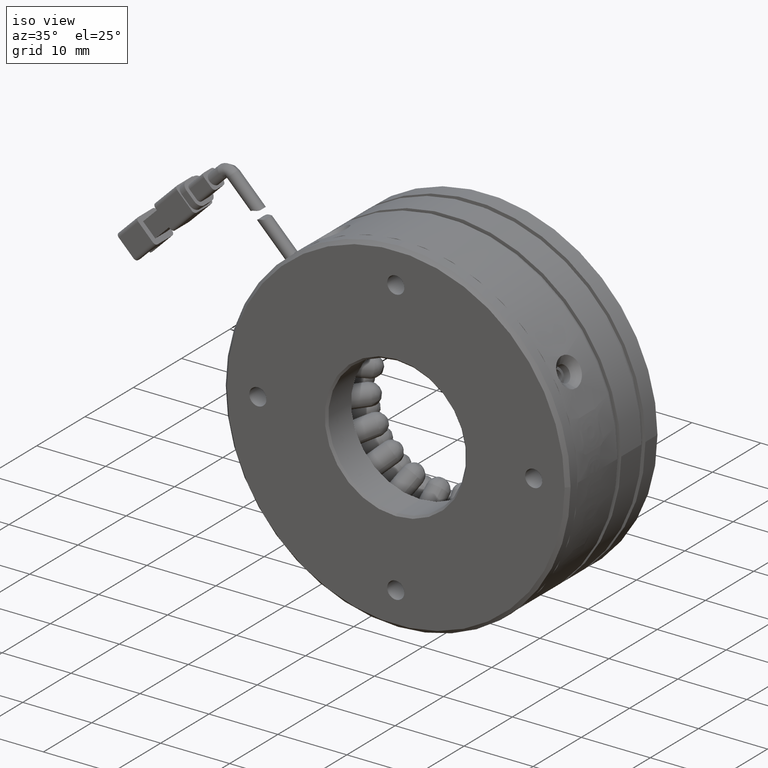
[diagram: clean part render]
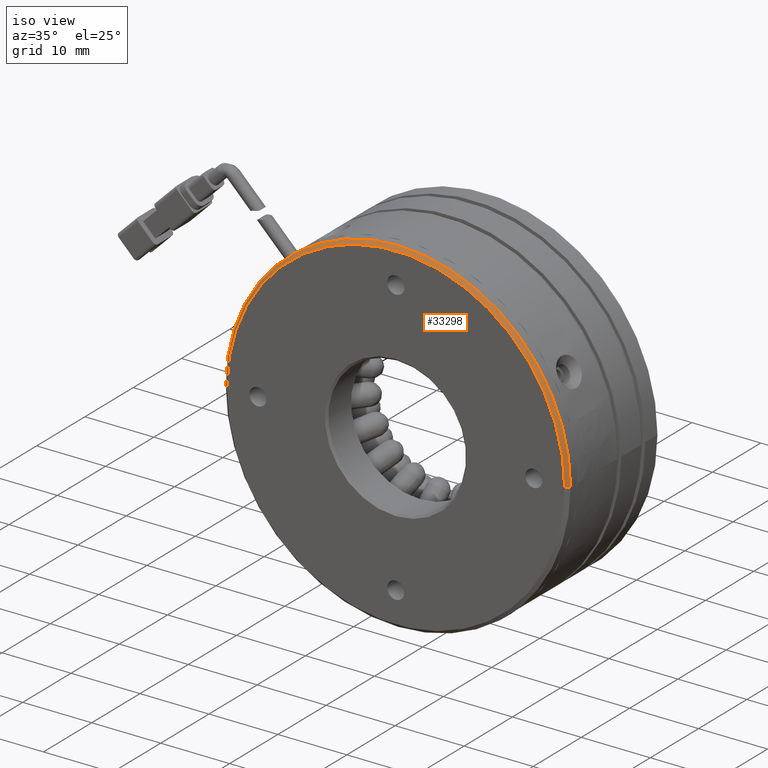
[diagram: same view with one face highlighted and labeled with its STEP entity id]
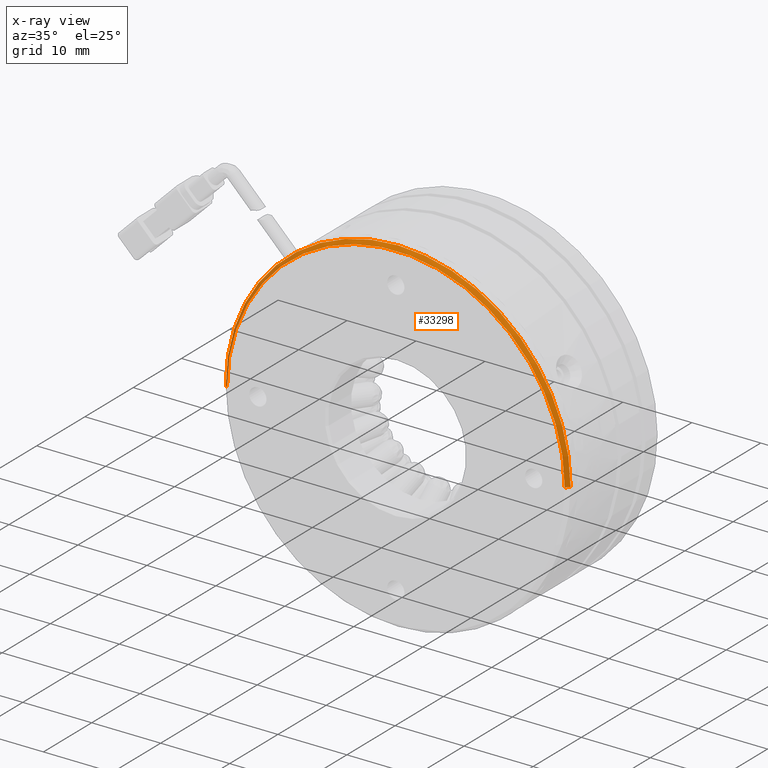
[diagram: x-ray of the same camera — body ghosted, the highlighted face saturated]
A machine part, iso view. The second image highlights one B-rep face of the part: STEP entity #33298.
The next image is the same camera in x-ray: the body ghosted, the highlighted face saturated — about 0% of this face is hidden behind the body in this view.
In plain terms, the highlighted conical surface has half-angle 45 deg.
Its self-contained STEP definition (entity closure, byte-faithful):
#421 = CONICAL_SURFACE ( 'NONE', #27696, 25.00000000000000000, 0.7853981633974380600 ) ;
#854 = VERTEX_POINT ( 'NONE', #55581 ) ;
#3679 = CIRCLE ( 'NONE', #52409, 25.00000000000000000 ) ;
#9004 = CARTESIAN_POINT ( 'NONE',  ( 20.97418136128692400, 0.6682341470607213700, 3.061616997868383400E-015 ) ) ;
#10706 = CARTESIAN_POINT ( 'NONE',  ( 20.97418136128692400, 0.6682341470607197100, 3.061616997868383000E-015 ) ) ;
#10949 = VECTOR ( 'NONE', #47895, 1000.000000000000000 ) ;
#15652 = VERTEX_POINT ( 'NONE', #41246 ) ;
#15858 = LINE ( 'NONE', #10706, #28560 ) ;
#16691 = ORIENTED_EDGE ( 'NONE', *, *, #40428, .T. ) ;
#17619 = DIRECTION ( 'NONE',  ( -1.000000000000000000, 6.938893903907228400E-017, 0.0000000000000000000 ) ) ;
#19113 = CARTESIAN_POINT ( 'NONE',  ( -29.02581863871307600, 0.6682341470607231500, 0.0000000000000000000 ) ) ;
#19434 = EDGE_LOOP ( 'NONE', ( #39257, #16691, #30183, #53920, #61777 ) ) ;
#19877 = CARTESIAN_POINT ( 'NONE',  ( -4.025818638713077200, 0.1682341470607001700, 0.0000000000000000000 ) ) ;
#20148 = CARTESIAN_POINT ( 'NONE',  ( -4.025818638713073700, 0.6682341470607213700, 25.00000000000000000 ) ) ;
#20560 = VERTEX_POINT ( 'NONE', #23041 ) ;
#21780 = CARTESIAN_POINT ( 'NONE',  ( -4.025818638713077200, 0.6682341470607213700, 0.0000000000000000000 ) ) ;
#21887 = CIRCLE ( 'NONE', #61725, 25.00000000000000000 ) ;
#22237 = DIRECTION ( 'NONE',  ( -0.0000000000000000000, -1.000000000000000000, -0.0000000000000000000 ) ) ;
#23041 = CARTESIAN_POINT ( 'NONE',  ( -28.52581863871306600, 0.1682341470607018900, 0.0000000000000000000 ) ) ;
#24668 = DIRECTION ( 'NONE',  ( -1.000000000000000000, 6.969871108835388500E-017, 0.0000000000000000000 ) ) ;
#24694 = EDGE_CURVE ( 'NONE', #49188, #36948, #21887, .T. ) ;
#25157 = CIRCLE ( 'NONE', #47836, 24.49999999999998900 ) ;
#26580 = DIRECTION ( 'NONE',  ( -9.020562075079396900E-016, 0.0000000000000000000, 1.000000000000000000 ) ) ;
#27031 = DIRECTION ( 'NONE',  ( 6.938893903907228400E-017, 1.000000000000000000, 0.0000000000000000000 ) ) ;
#27696 = AXIS2_PLACEMENT_3D ( 'NONE', #55873, #27031, #17619 ) ;
#28560 = VECTOR ( 'NONE', #49074, 1000.000000000000000 ) ;
#30183 = ORIENTED_EDGE ( 'NONE', *, *, #24694, .T. ) ;
#33298 = ADVANCED_FACE ( 'NONE', ( #44576 ), #421, .T. ) ;
#36816 = EDGE_CURVE ( 'NONE', #20560, #15652, #61956, .T. ) ;
#36948 = VERTEX_POINT ( 'NONE', #20148 ) ;
#39257 = ORIENTED_EDGE ( 'NONE', *, *, #43220, .T. ) ;
#40428 = EDGE_CURVE ( 'NONE', #854, #49188, #15858, .T. ) ;
#41246 = CARTESIAN_POINT ( 'NONE',  ( -29.02581863871307600, 0.6682341470607213700, 0.0000000000000000000 ) ) ;
#41248 = EDGE_CURVE ( 'NONE', #36948, #15652, #3679, .T. ) ;
#43220 = EDGE_CURVE ( 'NONE', #20560, #854, #25157, .T. ) ;
#44576 = FACE_OUTER_BOUND ( 'NONE', #19434, .T. ) ;
#47836 = AXIS2_PLACEMENT_3D ( 'NONE', #19877, #53515, #24668 ) ;
#47895 = DIRECTION ( 'NONE',  ( -0.7071067811865402500, 0.7071067811865547900, 0.0000000000000000000 ) ) ;
#49074 = DIRECTION ( 'NONE',  ( 0.7071067811865402500, 0.7071067811865547900, 8.659560562354844100E-017 ) ) ;
#49188 = VERTEX_POINT ( 'NONE', #9004 ) ;
#51061 = CARTESIAN_POINT ( 'NONE',  ( -4.025818638713077200, 0.6682341470607213700, 0.0000000000000000000 ) ) ;
#52409 = AXIS2_PLACEMENT_3D ( 'NONE', #51061, #22237, #55882 ) ;
#53515 = DIRECTION ( 'NONE',  ( 6.938893903907228400E-017, 1.000000000000000000, 0.0000000000000000000 ) ) ;
#53920 = ORIENTED_EDGE ( 'NONE', *, *, #41248, .T. ) ;
#55414 = DIRECTION ( 'NONE',  ( -0.0000000000000000000, -1.000000000000000000, -0.0000000000000000000 ) ) ;
#55581 = CARTESIAN_POINT ( 'NONE',  ( 20.47418136128691300, 0.1682341470606984500, 3.031000827889698500E-015 ) ) ;
#55873 = CARTESIAN_POINT ( 'NONE',  ( -4.025818638713077200, 0.6682341470607213700, 0.0000000000000000000 ) ) ;
#55882 = DIRECTION ( 'NONE',  ( 0.0000000000000000000, 0.0000000000000000000, 1.000000000000000000 ) ) ;
#61725 = AXIS2_PLACEMENT_3D ( 'NONE', #21780, #55414, #26580 ) ;
#61777 = ORIENTED_EDGE ( 'NONE', *, *, #36816, .F. ) ;
#61956 = LINE ( 'NONE', #19113, #10949 ) ;